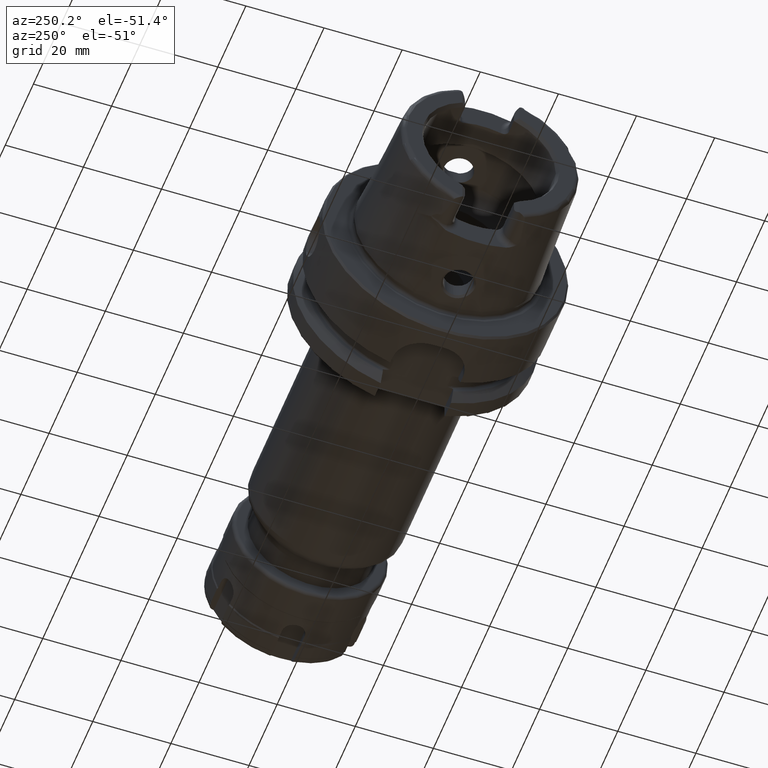
[diagram: clean part render]
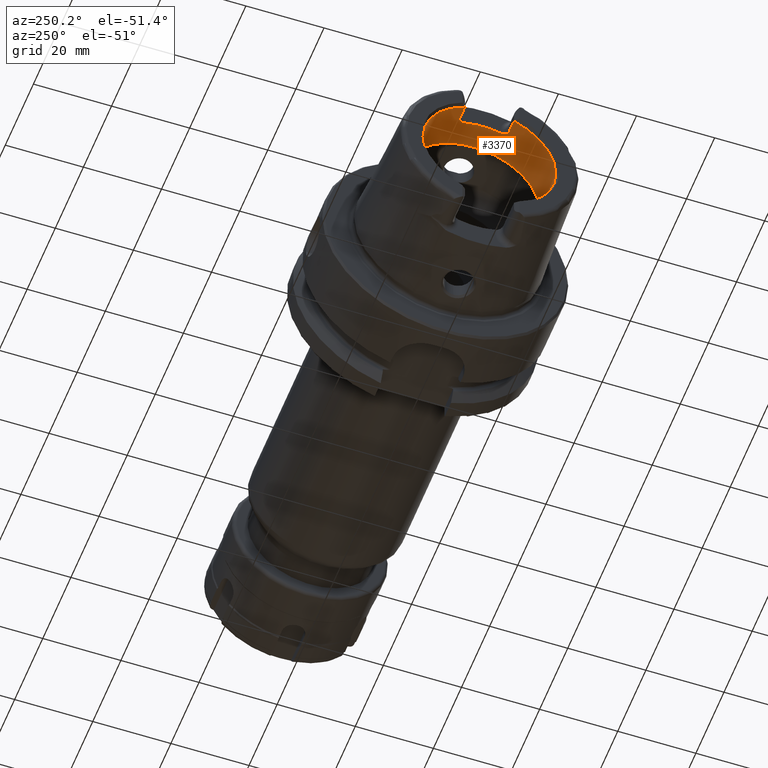
[diagram: same view with one face highlighted and labeled with its STEP entity id]
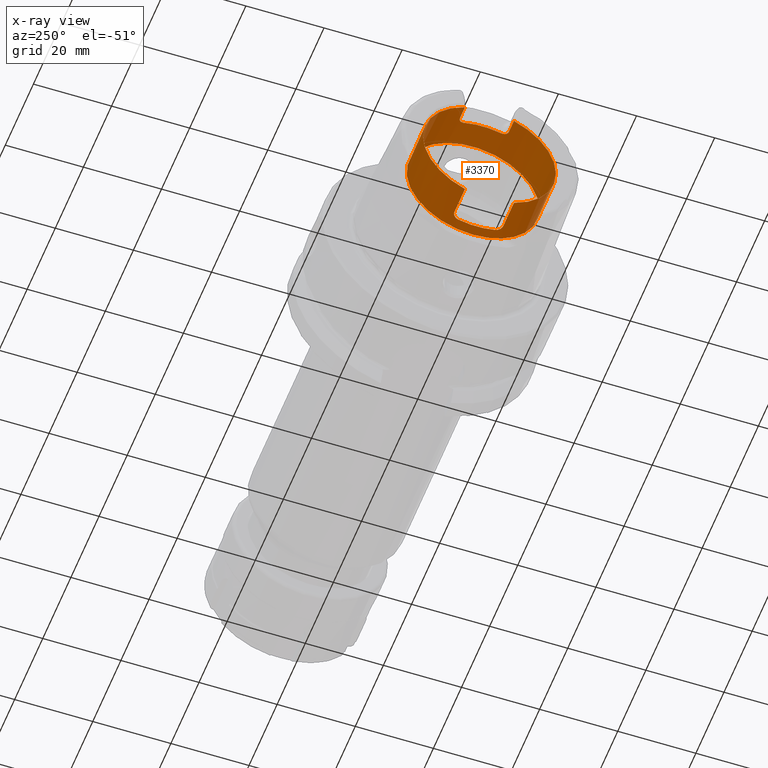
[diagram: x-ray of the same camera — body ghosted, the highlighted face saturated]
A machine part, auxiliary view. The second image highlights one B-rep face of the part: STEP entity #3370.
The next image is the same camera in x-ray: the body ghosted, the highlighted face saturated — about 0% of this face is hidden behind the body in this view.
In plain terms, the highlighted cylindrical surface (bore or boss wall) has radius 17 mm, axis along (-1, 0, 0).
Its self-contained STEP definition (entity closure, byte-faithful):
#104=B_SPLINE_CURVE_WITH_KNOTS('',3,(#6307,#6308,#6309,#6310,#6311,#6312,
#6313,#6314,#6315,#6316),.UNSPECIFIED.,.F.,.F.,(4,2,2,2,4),(0.229569660485746,
0.289239803007022,0.348909945528297,0.405407845050218,0.46190574457214),
 .UNSPECIFIED.);
#105=B_SPLINE_CURVE_WITH_KNOTS('',3,(#6325,#6326,#6327,#6328,#6329,#6330,
#6331,#6332,#6333,#6334),.UNSPECIFIED.,.F.,.F.,(4,2,2,2,4),(0.46190574457214,
0.519239917776744,0.576574090981348,0.635410522815223,0.694246954649097),
 .UNSPECIFIED.);
#106=B_SPLINE_CURVE_WITH_KNOTS('',3,(#6343,#6344,#6345,#6346,#6347,#6348,
#6349,#6350,#6351,#6352),.UNSPECIFIED.,.F.,.F.,(4,2,2,2,4),(0.461905744572139,
0.518403644094061,0.574901543615982,0.634571686137257,0.694241828658533),
 .UNSPECIFIED.);
#107=B_SPLINE_CURVE_WITH_KNOTS('',3,(#6366,#6367,#6368,#6369,#6370,#6371,
#6372,#6373,#6374,#6375),.UNSPECIFIED.,.F.,.F.,(4,2,2,2,4),(0.229569660485747,
0.289239803007022,0.348909945528297,0.405407845050218,0.46190574457214),
 .UNSPECIFIED.);
#287=CYLINDRICAL_SURFACE('',#3742,17.);
#409=FACE_OUTER_BOUND('',#608,.T.);
#608=EDGE_LOOP('',(#2722,#2723,#2724,#2725,#2726,#2727,#2728,#2729,#2730,
#2731,#2732,#2733,#2734,#2735,#2736,#2737,#2738));
#734=LINE('',#5146,#940);
#740=LINE('',#5162,#946);
#746=LINE('',#5217,#952);
#750=LINE('',#5283,#956);
#812=LINE('',#6390,#1018);
#940=VECTOR('',#4095,10.);
#946=VECTOR('',#4109,10.);
#952=VECTOR('',#4131,10.);
#956=VECTOR('',#4155,10.);
#1018=VECTOR('',#4475,17.);
#1224=CIRCLE('',#3730,17.);
#1229=CIRCLE('',#3741,17.);
#1230=CIRCLE('',#3743,17.);
#1231=CIRCLE('',#3744,17.);
#1232=CIRCLE('',#3745,17.);
#1233=CIRCLE('',#3746,17.);
#1234=CIRCLE('',#3747,17.);
#1363=VERTEX_POINT('',#5099);
#1370=VERTEX_POINT('',#5145);
#1373=VERTEX_POINT('',#5152);
#1376=VERTEX_POINT('',#5160);
#1384=VERTEX_POINT('',#5207);
#1387=VERTEX_POINT('',#5215);
#1394=VERTEX_POINT('',#5250);
#1399=VERTEX_POINT('',#5282);
#1506=VERTEX_POINT('',#6305);
#1508=VERTEX_POINT('',#6324);
#1510=VERTEX_POINT('',#6342);
#1511=VERTEX_POINT('',#6359);
#1513=VERTEX_POINT('',#6386);
#1514=VERTEX_POINT('',#6387);
#1515=VERTEX_POINT('',#6389);
#1727=EDGE_CURVE('',#1370,#1363,#734,.T.);
#1735=EDGE_CURVE('',#1373,#1376,#740,.T.);
#1748=EDGE_CURVE('',#1384,#1387,#746,.T.);
#1762=EDGE_CURVE('',#1399,#1394,#750,.T.);
#1928=EDGE_CURVE('',#1506,#1387,#104,.T.);
#1932=EDGE_CURVE('',#1399,#1508,#105,.T.);
#1937=EDGE_CURVE('',#1370,#1510,#106,.T.);
#1941=EDGE_CURVE('',#1511,#1510,#1224,.T.);
#1945=EDGE_CURVE('',#1511,#1376,#107,.T.);
#1949=EDGE_CURVE('',#1506,#1508,#1229,.T.);
#1950=EDGE_CURVE('',#1513,#1514,#1230,.T.);
#1951=EDGE_CURVE('',#1513,#1515,#812,.T.);
#1952=EDGE_CURVE('',#1384,#1515,#1231,.T.);
#1953=EDGE_CURVE('',#1373,#1394,#1232,.T.);
#1954=EDGE_CURVE('',#1515,#1363,#1233,.T.);
#1955=EDGE_CURVE('',#1514,#1513,#1234,.T.);
#2722=ORIENTED_EDGE('',*,*,#1950,.F.);
#2723=ORIENTED_EDGE('',*,*,#1951,.T.);
#2724=ORIENTED_EDGE('',*,*,#1952,.F.);
#2725=ORIENTED_EDGE('',*,*,#1748,.T.);
#2726=ORIENTED_EDGE('',*,*,#1928,.F.);
#2727=ORIENTED_EDGE('',*,*,#1949,.T.);
#2728=ORIENTED_EDGE('',*,*,#1932,.F.);
#2729=ORIENTED_EDGE('',*,*,#1762,.T.);
#2730=ORIENTED_EDGE('',*,*,#1953,.F.);
#2731=ORIENTED_EDGE('',*,*,#1735,.T.);
#2732=ORIENTED_EDGE('',*,*,#1945,.F.);
#2733=ORIENTED_EDGE('',*,*,#1941,.T.);
#2734=ORIENTED_EDGE('',*,*,#1937,.F.);
#2735=ORIENTED_EDGE('',*,*,#1727,.T.);
#2736=ORIENTED_EDGE('',*,*,#1954,.F.);
#2737=ORIENTED_EDGE('',*,*,#1951,.F.);
#2738=ORIENTED_EDGE('',*,*,#1955,.F.);
#3370=ADVANCED_FACE('',(#409),#287,.F.);
#3730=AXIS2_PLACEMENT_3D('',#6360,#4445,#4446);
#3741=AXIS2_PLACEMENT_3D('',#6384,#4469,#4470);
#3742=AXIS2_PLACEMENT_3D('',#6385,#4471,#4472);
#3743=AXIS2_PLACEMENT_3D('',#6388,#4473,#4474);
#3744=AXIS2_PLACEMENT_3D('',#6391,#4476,#4477);
#3745=AXIS2_PLACEMENT_3D('',#6392,#4478,#4479);
#3746=AXIS2_PLACEMENT_3D('',#6393,#4480,#4481);
#3747=AXIS2_PLACEMENT_3D('',#6394,#4482,#4483);
#4095=DIRECTION('',(-1.,0.,0.));
#4109=DIRECTION('',(1.,0.,0.));
#4131=DIRECTION('',(1.,0.,0.));
#4155=DIRECTION('',(-1.,0.,0.));
#4445=DIRECTION('center_axis',(-1.,0.,0.));
#4446=DIRECTION('ref_axis',(0.,1.,0.));
#4469=DIRECTION('center_axis',(-1.,0.,0.));
#4470=DIRECTION('ref_axis',(0.,1.,0.));
#4471=DIRECTION('center_axis',(-1.,0.,0.));
#4472=DIRECTION('ref_axis',(0.,1.,0.));
#4473=DIRECTION('center_axis',(-1.,0.,0.));
#4474=DIRECTION('ref_axis',(0.,0.,1.));
#4475=DIRECTION('',(-1.,0.,0.));
#4476=DIRECTION('center_axis',(1.,0.,0.));
#4477=DIRECTION('ref_axis',(0.,-1.,0.));
#4478=DIRECTION('center_axis',(1.,0.,0.));
#4479=DIRECTION('ref_axis',(0.,-1.,0.));
#4480=DIRECTION('center_axis',(1.,0.,0.));
#4481=DIRECTION('ref_axis',(0.,-1.,0.));
#4482=DIRECTION('center_axis',(-1.,0.,0.));
#4483=DIRECTION('ref_axis',(0.,0.,1.));
#5099=CARTESIAN_POINT('',(-31.,-6.27,-15.8014904360317));
#5145=CARTESIAN_POINT('',(-23.5,-6.27,-15.8014904360317));
#5146=CARTESIAN_POINT('',(-25.6423502691896,-6.27,-15.8014904360317));
#5152=CARTESIAN_POINT('',(-31.,6.27,-15.8014904360317));
#5160=CARTESIAN_POINT('',(-23.5,6.27,-15.8014904360317));
#5162=CARTESIAN_POINT('',(-25.6423502691896,6.27,-15.8014904360317));
#5207=CARTESIAN_POINT('',(-31.,-6.27,15.8014904360317));
#5215=CARTESIAN_POINT('',(-27.5,-6.27,15.8014904360317));
#5217=CARTESIAN_POINT('',(-25.6423502691896,-6.27,15.8014904360317));
#5250=CARTESIAN_POINT('',(-31.,6.27,15.8014904360317));
#5282=CARTESIAN_POINT('',(-27.5,6.27,15.8014904360317));
#5283=CARTESIAN_POINT('',(-25.6423502691896,6.27,15.8014904360317));
#6305=CARTESIAN_POINT('',(-26.,-4.77,16.3170800083839));
#6307=CARTESIAN_POINT('Ctrl Pts',(-26.,-4.77,16.3170800083839));
#6308=CARTESIAN_POINT('Ctrl Pts',(-26.,-4.96091029208457,16.2612708750845));
#6309=CARTESIAN_POINT('Ctrl Pts',(-26.0385404635846,-5.16378617408596,16.1979610859593));
#6310=CARTESIAN_POINT('Ctrl Pts',(-26.1950909803916,-5.53690543536203,16.0742436586733));
#6311=CARTESIAN_POINT('Ctrl Pts',(-26.3130861154278,-5.70721093092864,16.01400454532));
#6312=CARTESIAN_POINT('Ctrl Pts',(-26.5811791540138,-5.96960590306613,15.9179857910505));
#6313=CARTESIAN_POINT('Ctrl Pts',(-26.7467155703026,-6.082078486584,15.8749745356799));
#6314=CARTESIAN_POINT('Ctrl Pts',(-27.1119229195206,-6.23232125085234,15.8165946761251));
#6315=CARTESIAN_POINT('Ctrl Pts',(-27.3116736682603,-6.27,15.8014904360317));
#6316=CARTESIAN_POINT('Ctrl Pts',(-27.5,-6.27,15.8014904360317));
#6324=CARTESIAN_POINT('',(-26.,4.77,16.3170800083839));
#6325=CARTESIAN_POINT('Ctrl Pts',(-27.5,6.27,15.8014904360317));
#6326=CARTESIAN_POINT('Ctrl Pts',(-27.308886089318,6.27,15.8014904360317));
#6327=CARTESIAN_POINT('Ctrl Pts',(-27.1064099842243,6.23121026569193,15.8170435837256));
#6328=CARTESIAN_POINT('Ctrl Pts',(-26.7371019784685,6.07691823919465,15.8769617281184));
#6329=CARTESIAN_POINT('Ctrl Pts',(-26.5701870418163,5.96150738537594,15.9210500039306));
#6330=CARTESIAN_POINT('Ctrl Pts',(-26.3050641818979,5.69638452545756,16.017853695422));
#6331=CARTESIAN_POINT('Ctrl Pts',(-26.1900212186221,5.52750941197086,16.0774506535614));
#6332=CARTESIAN_POINT('Ctrl Pts',(-26.0374824299787,5.15846789211413,16.1996292802954));
#6333=CARTESIAN_POINT('Ctrl Pts',(-26.,4.95824289522375,16.2620506397863));
#6334=CARTESIAN_POINT('Ctrl Pts',(-26.,4.77,16.3170800083839));
#6342=CARTESIAN_POINT('',(-22.,-4.77,-16.3170800083839));
#6343=CARTESIAN_POINT('Ctrl Pts',(-23.5,-6.27,-15.8014904360317));
#6344=CARTESIAN_POINT('Ctrl Pts',(-23.3116736682603,-6.27,-15.8014904360317));
#6345=CARTESIAN_POINT('Ctrl Pts',(-23.1119229195206,-6.23232125085234,-15.8165946761251));
#6346=CARTESIAN_POINT('Ctrl Pts',(-22.7467155703026,-6.082078486584,-15.8749745356799));
#6347=CARTESIAN_POINT('Ctrl Pts',(-22.5811791540138,-5.96960590306613,-15.9179857910505));
#6348=CARTESIAN_POINT('Ctrl Pts',(-22.3130861154278,-5.70721093092864,-16.01400454532));
#6349=CARTESIAN_POINT('Ctrl Pts',(-22.1950909803916,-5.53690543536204,-16.0742436586733));
#6350=CARTESIAN_POINT('Ctrl Pts',(-22.0385404635846,-5.16378617408596,-16.1979610859593));
#6351=CARTESIAN_POINT('Ctrl Pts',(-22.,-4.96091029208457,-16.2612708750845));
#6352=CARTESIAN_POINT('Ctrl Pts',(-22.,-4.77,-16.3170800083839));
#6359=CARTESIAN_POINT('',(-22.,4.77,-16.3170800083839));
#6360=CARTESIAN_POINT('Origin',(-22.,0.,0.));
#6366=CARTESIAN_POINT('Ctrl Pts',(-22.,4.77,-16.3170800083839));
#6367=CARTESIAN_POINT('Ctrl Pts',(-22.,4.96091029208457,-16.2612708750845));
#6368=CARTESIAN_POINT('Ctrl Pts',(-22.0385404635846,5.16378617408596,-16.1979610859593));
#6369=CARTESIAN_POINT('Ctrl Pts',(-22.1950909803916,5.53690543536204,-16.0742436586733));
#6370=CARTESIAN_POINT('Ctrl Pts',(-22.3130861154278,5.70721093092864,-16.01400454532));
#6371=CARTESIAN_POINT('Ctrl Pts',(-22.5811791540138,5.96960590306613,-15.9179857910505));
#6372=CARTESIAN_POINT('Ctrl Pts',(-22.7467155703026,6.082078486584,-15.8749745356799));
#6373=CARTESIAN_POINT('Ctrl Pts',(-23.1119229195206,6.23232125085234,-15.8165946761251));
#6374=CARTESIAN_POINT('Ctrl Pts',(-23.3116736682603,6.27,-15.8014904360317));
#6375=CARTESIAN_POINT('Ctrl Pts',(-23.5,6.27,-15.8014904360317));
#6384=CARTESIAN_POINT('Origin',(-26.,0.,0.));
#6385=CARTESIAN_POINT('Origin',(-25.6423502691896,0.,0.));
#6386=CARTESIAN_POINT('',(-19.2847005383793,-17.,2.0818995585505E-15));
#6387=CARTESIAN_POINT('',(-19.2847005383793,-2.0818995585505E-15,-17.));
#6388=CARTESIAN_POINT('Origin',(-19.2847005383793,0.,0.));
#6389=CARTESIAN_POINT('',(-31.,-17.,2.0818995585505E-15));
#6390=CARTESIAN_POINT('',(-25.6423502691896,-17.,2.0818995585505E-15));
#6391=CARTESIAN_POINT('Origin',(-31.,0.,0.));
#6392=CARTESIAN_POINT('Origin',(-31.,0.,0.));
#6393=CARTESIAN_POINT('Origin',(-31.,0.,0.));
#6394=CARTESIAN_POINT('Origin',(-19.2847005383793,0.,0.));